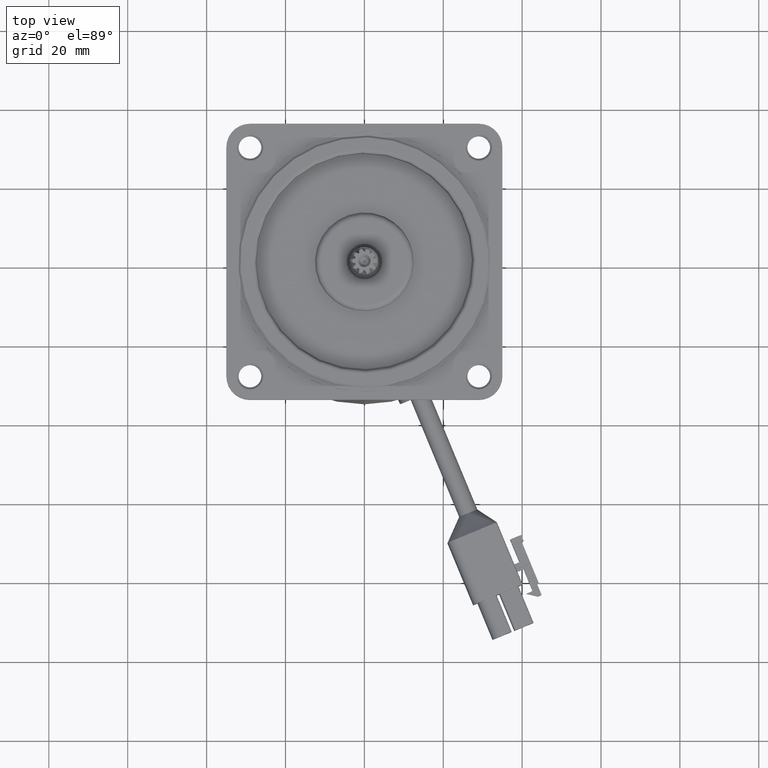
[diagram: clean part render]
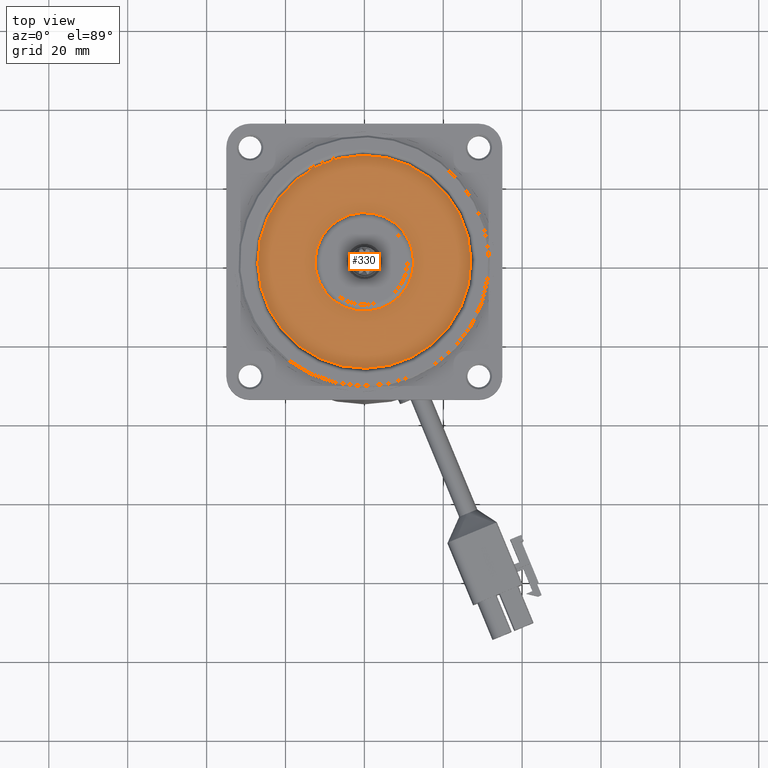
[diagram: same view with one face highlighted and labeled with its STEP entity id]
A machine part, top view. The second image highlights one B-rep face of the part: STEP entity #330.
In plain terms, the highlighted planar face has unit normal (-0, -0, 1).
Its self-contained STEP definition (entity closure, byte-faithful):
#78 = EDGE_CURVE ( 'NONE', #116, #117, #5561, .T. ) ;
#116 = VERTEX_POINT ( 'NONE', #5582 ) ;
#117 = VERTEX_POINT ( 'NONE', #5583 ) ;
#157 = VERTEX_POINT ( 'NONE', #5882 ) ;
#160 = VERTEX_POINT ( 'NONE', #5880 ) ;
#161 = EDGE_CURVE ( 'NONE', #160, #157, #5887, .T. ) ;
#297 = EDGE_CURVE ( 'NONE', #117, #116, #6419, .T. ) ;
#330 = ADVANCED_FACE ( 'NONE', ( #7085, #6835 ), #6854, .T. ) ;
#331 = ORIENTED_EDGE ( 'NONE', *, *, #161, .F. ) ;
#332 = ORIENTED_EDGE ( 'NONE', *, *, #78, .T. ) ;
#335 = EDGE_CURVE ( 'NONE', #157, #160, #6878, .T. ) ;
#339 = EDGE_LOOP ( 'NONE', ( #649, #332 ) ) ;
#342 = EDGE_LOOP ( 'NONE', ( #331, #350 ) ) ;
#350 = ORIENTED_EDGE ( 'NONE', *, *, #335, .F. ) ;
#649 = ORIENTED_EDGE ( 'NONE', *, *, #297, .T. ) ;
#5517 = AXIS2_PLACEMENT_3D ( 'NONE', #5560, #5559, #5558 ) ;
#5558 = DIRECTION ( 'NONE',  ( -1.000000000000000000, 0.0000000000000000000, 0.0000000000000000000 ) ) ;
#5559 = DIRECTION ( 'NONE',  ( -0.0000000000000000000, -0.0000000000000000000, -1.000000000000000000 ) ) ;
#5560 = CARTESIAN_POINT ( 'NONE',  ( 0.0000000000000000000, 0.0000000000000000000, 3.999999999999999100 ) ) ;
#5561 = CIRCLE ( 'NONE', #5517, 27.00000000000000000 ) ;
#5582 = CARTESIAN_POINT ( 'NONE',  ( 27.00000000000000000, 3.337162527676537500E-015, 3.999999999999999100 ) ) ;
#5583 = CARTESIAN_POINT ( 'NONE',  ( -27.00000000000000000, 0.0000000000000000000, 3.999999999999999100 ) ) ;
#5874 = DIRECTION ( 'NONE',  ( -1.000000000000000000, 0.0000000000000000000, 0.0000000000000000000 ) ) ;
#5875 = DIRECTION ( 'NONE',  ( -0.0000000000000000000, -0.0000000000000000000, -1.000000000000000000 ) ) ;
#5876 = CARTESIAN_POINT ( 'NONE',  ( 0.0000000000000000000, 0.0000000000000000000, 3.999999999999998200 ) ) ;
#5880 = CARTESIAN_POINT ( 'NONE',  ( -12.50000000000000000, 0.0000000000000000000, 3.999999999999998200 ) ) ;
#5882 = CARTESIAN_POINT ( 'NONE',  ( 12.50000000000000000, 1.530808498934191500E-015, 3.999999999999998200 ) ) ;
#5886 = AXIS2_PLACEMENT_3D ( 'NONE', #5876, #5875, #5874 ) ;
#5887 = CIRCLE ( 'NONE', #5886, 12.50000000000000000 ) ;
#6415 = DIRECTION ( 'NONE',  ( -1.000000000000000000, 0.0000000000000000000, 0.0000000000000000000 ) ) ;
#6417 = DIRECTION ( 'NONE',  ( -0.0000000000000000000, -0.0000000000000000000, -1.000000000000000000 ) ) ;
#6418 = AXIS2_PLACEMENT_3D ( 'NONE', #6422, #6417, #6415 ) ;
#6419 = CIRCLE ( 'NONE', #6418, 27.00000000000000000 ) ;
#6422 = CARTESIAN_POINT ( 'NONE',  ( 0.0000000000000000000, 0.0000000000000000000, 3.999999999999999100 ) ) ;
#6835 = FACE_BOUND ( 'NONE', #342, .T. ) ;
#6854 = PLANE ( 'NONE',  #6875 ) ;
#6875 = AXIS2_PLACEMENT_3D ( 'NONE', #7090, #7083, #7082 ) ;
#6878 = CIRCLE ( 'NONE', #7076, 12.50000000000000000 ) ;
#7073 = DIRECTION ( 'NONE',  ( -1.000000000000000000, 0.0000000000000000000, 0.0000000000000000000 ) ) ;
#7074 = DIRECTION ( 'NONE',  ( -0.0000000000000000000, -0.0000000000000000000, -1.000000000000000000 ) ) ;
#7075 = CARTESIAN_POINT ( 'NONE',  ( 0.0000000000000000000, 0.0000000000000000000, 3.999999999999998200 ) ) ;
#7076 = AXIS2_PLACEMENT_3D ( 'NONE', #7075, #7074, #7073 ) ;
#7082 = DIRECTION ( 'NONE',  ( -1.000000000000000000, 0.0000000000000000000, 0.0000000000000000000 ) ) ;
#7083 = DIRECTION ( 'NONE',  ( -0.0000000000000000000, 0.0000000000000000000, -1.000000000000000000 ) ) ;
#7085 = FACE_OUTER_BOUND ( 'NONE', #339, .T. ) ;
#7090 = CARTESIAN_POINT ( 'NONE',  ( 0.0000000000000000000, 27.50000000000000000, 3.999999999999999100 ) ) ;